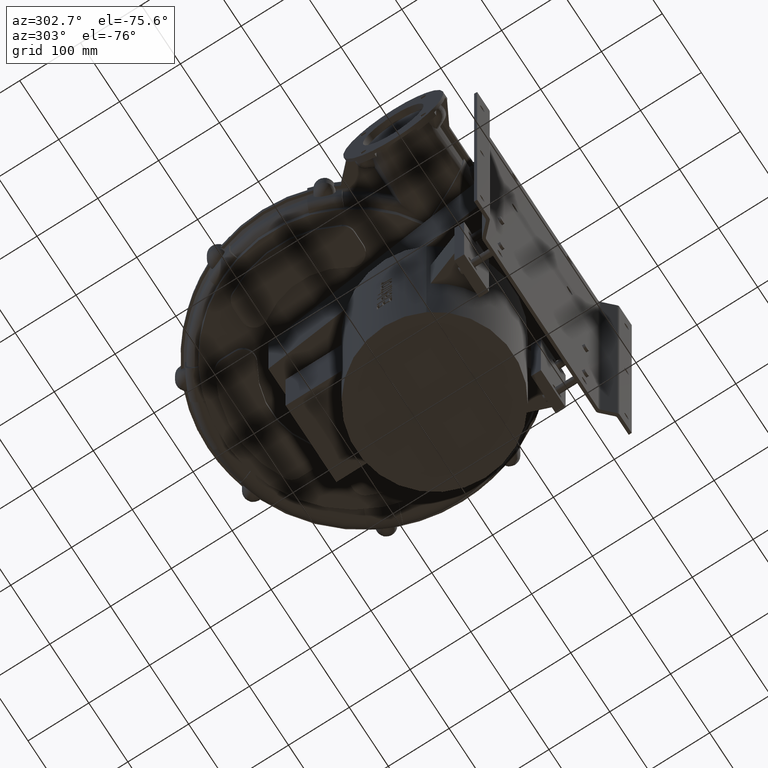
[diagram: clean part render]
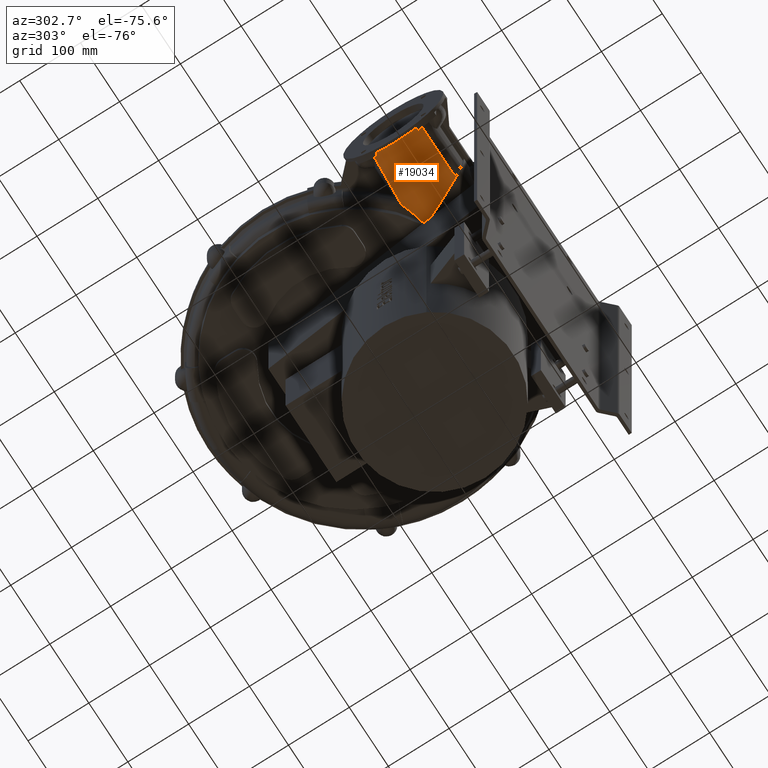
[diagram: same view with one face highlighted and labeled with its STEP entity id]
A machine part, auxiliary view. The second image highlights one B-rep face of the part: STEP entity #19034.
In plain terms, the highlighted face is a freeform B-spline surface patch.
Its self-contained STEP definition (entity closure, byte-faithful):
#18508=CARTESIAN_POINT('',(-105.57427040487084,-187.29408273749408,22.354544099124194));
#18509=VERTEX_POINT('',#18508);
#18562=CARTESIAN_POINT('',(-138.60398194530271,-256.86602949684044,26.060678539724591));
#18563=VERTEX_POINT('',#18562);
#18575=CARTESIAN_POINT('',(-105.57427040487084,-187.29408273749408,22.354544099124205));
#18576=CARTESIAN_POINT('',(-111.03010591521426,-198.78595111753509,19.76069612687801));
#18577=CARTESIAN_POINT('',(-117.58811859220882,-212.59938415777407,17.728936858820752));
#18578=CARTESIAN_POINT('',(-129.96340081218742,-238.66599011908613,19.540247292853756));
#18579=CARTESIAN_POINT('',(-134.67068229825347,-248.58114595197236,22.218329220558054));
#18580=CARTESIAN_POINT('',(-138.60398194530271,-256.8660294968405,26.060678539724599));
#18581=B_SPLINE_CURVE_WITH_KNOTS('',3,(#18575,#18576,#18577,#18578,#18579,#18580),.UNSPECIFIED.,.F.,.U.,(4,2,4),(-6.636294584235985,-2.983059013502821,0.0),.UNSPECIFIED.);
#18582=EDGE_CURVE('',#18509,#18563,#18581,.T.);
#18640=CARTESIAN_POINT('',(-113.19143500979084,-182.79140855200041,23.523748582379433));
#18641=VERTEX_POINT('',#18640);
#18642=CARTESIAN_POINT('',(-113.19143500979087,-182.79140855200043,23.523748582379433));
#18643=CARTESIAN_POINT('',(-110.7494534720078,-184.30357696690953,23.062691252733408));
#18644=CARTESIAN_POINT('',(-108.21127192183468,-185.8076529093093,22.675566921680662));
#18645=CARTESIAN_POINT('',(-105.57427040876107,-187.29408273530117,22.354544099597796));
#18646=B_SPLINE_CURVE_WITH_KNOTS('',3,(#18642,#18643,#18644,#18645),.UNSPECIFIED.,.F.,.U.,(4,4),(-11.974525727075308,-10.831865115836202),.UNSPECIFIED.);
#18647=EDGE_CURVE('',#18641,#18509,#18646,.T.);
#18936=CARTESIAN_POINT('',(-105.34706702488771,-169.70681471353274,27.590601559483119));
#18937=CARTESIAN_POINT('',(-105.34706702488769,-177.13116641537266,24.796171216259985));
#18938=CARTESIAN_POINT('',(-105.34706702488765,-193.28283357009795,20.318444038546481));
#18939=CARTESIAN_POINT('',(-105.34706702488761,-219.54883095327645,18.314672855267673));
#18940=CARTESIAN_POINT('',(-105.34706702488759,-241.21521045879081,20.923271342186219));
#18941=CARTESIAN_POINT('',(-105.34706702488751,-253.2775908183736,24.1678552433767));
#18942=CARTESIAN_POINT('',(-105.34706702488751,-257.15701099277754,25.403597892541473));
#18943=CARTESIAN_POINT('',(-146.89804468325835,-172.16795585653401,29.354728888480643));
#18944=CARTESIAN_POINT('',(-146.89804468325835,-178.93203228800391,25.354496162856563));
#18945=CARTESIAN_POINT('',(-146.89804468325826,-194.32904543447836,18.94593295639314));
#18946=CARTESIAN_POINT('',(-146.89804468325826,-220.33932644769607,16.078653081132682));
#18947=CARTESIAN_POINT('',(-146.89804468325826,-241.69868845589724,19.811558028876128));
#18948=CARTESIAN_POINT('',(-146.89804468325815,-253.17064651916883,24.456965384844654));
#18949=CARTESIAN_POINT('',(-146.89804468325815,-256.79346056527658,26.224550267594566));
#18950=CARTESIAN_POINT('',(-188.44902234162896,-174.62909699953525,31.118856217478164));
#18951=CARTESIAN_POINT('',(-188.44902234162879,-180.73677403820437,25.914820449924974));
#18952=CARTESIAN_POINT('',(-188.44902234162899,-195.37495763225078,17.574687814739669));
#18953=CARTESIAN_POINT('',(-188.44902234162876,-221.13185290756786,13.841964932902508));
#18954=CARTESIAN_POINT('',(-188.44902234162888,-242.18074221650977,18.701237250454639));
#18955=CARTESIAN_POINT('',(-188.44902234162873,-253.06597966245462,24.74280996096789));
#18956=CARTESIAN_POINT('',(-188.44902234162876,-256.42991013777566,27.045502642647655));
#18957=CARTESIAN_POINT('',(-229.99999999999957,-177.09023814253646,32.882983546475685));
#18958=CARTESIAN_POINT('',(-229.99999999999955,-182.53763991083562,26.473145396521545));
#18959=CARTESIAN_POINT('',(-229.99999999999946,-196.42116949663119,16.202176732586331));
#18960=CARTESIAN_POINT('',(-229.99999999999955,-221.92234840198745,11.605945158767515));
#18961=CARTESIAN_POINT('',(-229.99999999999943,-242.6642202136162,17.589523937144548));
#18962=CARTESIAN_POINT('',(-229.9999999999994,-252.95903536324985,25.031920102435841));
#18963=CARTESIAN_POINT('',(-229.9999999999994,-256.0663597102747,27.866455017700744));
#18964=B_SPLINE_SURFACE_WITH_KNOTS('',3,3,((#18936,#18943,#18950,#18957),(#18937,#18944,#18951,#18958),(#18938,#18945,#18952,#18959),(#18939,#18946,#18953,#18960),(#18940,#18947,#18954,#18961),(#18941,#18948,#18955,#18962),(#18942,#18949,#18956,#18963)),.UNSPECIFIED.,.F.,.F.,.F.,(4,1,1,1,4),(4,4),(0.0,0.285714285714286,0.571428571428571,0.857142857142857,1.0),(0.435959579298136,1.0),.UNSPECIFIED.);
#18965=ORIENTED_EDGE('',*,*,#18582,.T.);
#18966=CARTESIAN_POINT('',(-229.99999999999943,-256.06635971027464,27.866455017700744));
#18967=VERTEX_POINT('',#18966);
#18968=CARTESIAN_POINT('',(-138.60398194530271,-256.8660294968405,26.060678539724588));
#18969=CARTESIAN_POINT('',(-169.06932129686825,-256.59947290131856,26.662604032383307));
#18970=CARTESIAN_POINT('',(-199.53466064843383,-256.33291630579663,27.264529525042029));
#18971=CARTESIAN_POINT('',(-229.9999999999994,-256.0663597102747,27.866455017700744));
#18972=B_SPLINE_CURVE_WITH_KNOTS('',3,(#18968,#18969,#18970,#18971),.UNSPECIFIED.,.F.,.U.,(4,4),(0.586443357218567,1.0),.UNSPECIFIED.);
#18973=EDGE_CURVE('',#18563,#18967,#18972,.T.);
#18974=ORIENTED_EDGE('',*,*,#18973,.T.);
#18975=CARTESIAN_POINT('',(-229.99999999999943,-253.14392129246579,25.38164383033709));
#18976=VERTEX_POINT('',#18975);
#18977=CARTESIAN_POINT('',(-229.99999999999955,-219.00000000000057,68.500000000000369));
#18978=DIRECTION('',(-1.0,0.0,0.0));
#18979=DIRECTION('',(0.0,0.0,-1.0));
#18980=AXIS2_PLACEMENT_3D('',#18977,#18978,#18979);
#18981=CIRCLE('',#18980,55.0);
#18982=EDGE_CURVE('',#18976,#18967,#18981,.T.);
#18983=ORIENTED_EDGE('',*,*,#18982,.F.);
#18984=CARTESIAN_POINT('',(-229.99999999999949,-193.4195730430194,19.810763440997412));
#18985=VERTEX_POINT('',#18984);
#18986=CARTESIAN_POINT('',(-229.99999999999955,-219.00000000000057,68.500000000000369));
#18987=DIRECTION('',(-1.0,0.0,0.0));
#18988=DIRECTION('',(0.0,0.0,-1.0));
#18989=AXIS2_PLACEMENT_3D('',#18986,#18987,#18988);
#18990=CIRCLE('',#18989,55.0);
#18991=EDGE_CURVE('',#18985,#18976,#18990,.T.);
#18992=ORIENTED_EDGE('',*,*,#18991,.F.);
#18993=CARTESIAN_POINT('',(-229.99999999999957,-184.85607870753566,25.381643830336841));
#18994=VERTEX_POINT('',#18993);
#18995=CARTESIAN_POINT('',(-229.99999999999955,-219.00000000000057,68.500000000000369));
#18996=DIRECTION('',(-1.0,0.0,0.0));
#18997=DIRECTION('',(0.0,0.0,-1.0));
#18998=AXIS2_PLACEMENT_3D('',#18995,#18996,#18997);
#18999=CIRCLE('',#18998,55.0);
#19000=EDGE_CURVE('',#18994,#18985,#18999,.T.);
#19001=ORIENTED_EDGE('',*,*,#19000,.F.);
#19002=CARTESIAN_POINT('',(-229.99999999999957,-177.09023814253644,32.882983546475693));
#19003=VERTEX_POINT('',#19002);
#19004=CARTESIAN_POINT('',(-229.99999999999955,-219.00000000000057,68.500000000000369));
#19005=DIRECTION('',(-1.0,0.0,0.0));
#19006=DIRECTION('',(0.0,0.0,-1.0));
#19007=AXIS2_PLACEMENT_3D('',#19004,#19005,#19006);
#19008=CIRCLE('',#19007,55.0);
#19009=EDGE_CURVE('',#19003,#18994,#19008,.T.);
#19010=ORIENTED_EDGE('',*,*,#19009,.F.);
#19011=CARTESIAN_POINT('',(-145.58606313792336,-172.0902447666378,29.299026167878111));
#19012=VERTEX_POINT('',#19011);
#19013=CARTESIAN_POINT('',(-145.58606313792333,-172.09024476663785,29.299026167878122));
#19014=CARTESIAN_POINT('',(-173.72404209194877,-173.7569092252707,30.493678627410642));
#19015=CARTESIAN_POINT('',(-201.86202104597416,-175.42357368390358,31.688331086943165));
#19016=CARTESIAN_POINT('',(-229.99999999999957,-177.09023814253646,32.882983546475685));
#19017=B_SPLINE_CURVE_WITH_KNOTS('',3,(#19013,#19014,#19015,#19016),.UNSPECIFIED.,.F.,.U.,(4,4),(0.618036484786985,1.0),.UNSPECIFIED.);
#19018=EDGE_CURVE('',#19012,#19003,#19017,.T.);
#19019=ORIENTED_EDGE('',*,*,#19018,.F.);
#19020=CARTESIAN_POINT('',(-113.19143500979084,-182.79140855200038,23.52374858237944));
#19021=CARTESIAN_POINT('',(-113.6989956664108,-182.76234894788527,23.537816541938511));
#19022=CARTESIAN_POINT('',(-114.20482303259533,-182.7151063654357,23.557358546623355));
#19023=CARTESIAN_POINT('',(-117.464230829342,-182.33263742849178,23.709077384380556));
#19024=CARTESIAN_POINT('',(-120.8322513157725,-181.54546326920681,23.993271924146534));
#19025=CARTESIAN_POINT('',(-130.8915743169359,-178.54752524169845,25.281097299368113));
#19026=CARTESIAN_POINT('',(-138.58468787730428,-175.53953090861356,26.746117112797691));
#19027=CARTESIAN_POINT('',(-145.58606313792333,-172.09024476663782,29.299026167878122));
#19028=B_SPLINE_CURVE_WITH_KNOTS('',3,(#19020,#19021,#19022,#19023,#19024,#19025,#19026,#19027),.UNSPECIFIED.,.F.,.U.,(4,2,2,4),(2.302625373258724,2.492163214656016,3.569247383145172,5.528282816588543),.UNSPECIFIED.);
#19029=EDGE_CURVE('',#18641,#19012,#19028,.T.);
#19030=ORIENTED_EDGE('',*,*,#19029,.F.);
#19031=ORIENTED_EDGE('',*,*,#18647,.T.);
#19032=EDGE_LOOP('',(#18965,#18974,#18983,#18992,#19001,#19010,#19019,#19030,#19031));
#19033=FACE_OUTER_BOUND('',#19032,.T.);
#19034=ADVANCED_FACE('',(#19033),#18964,.T.);